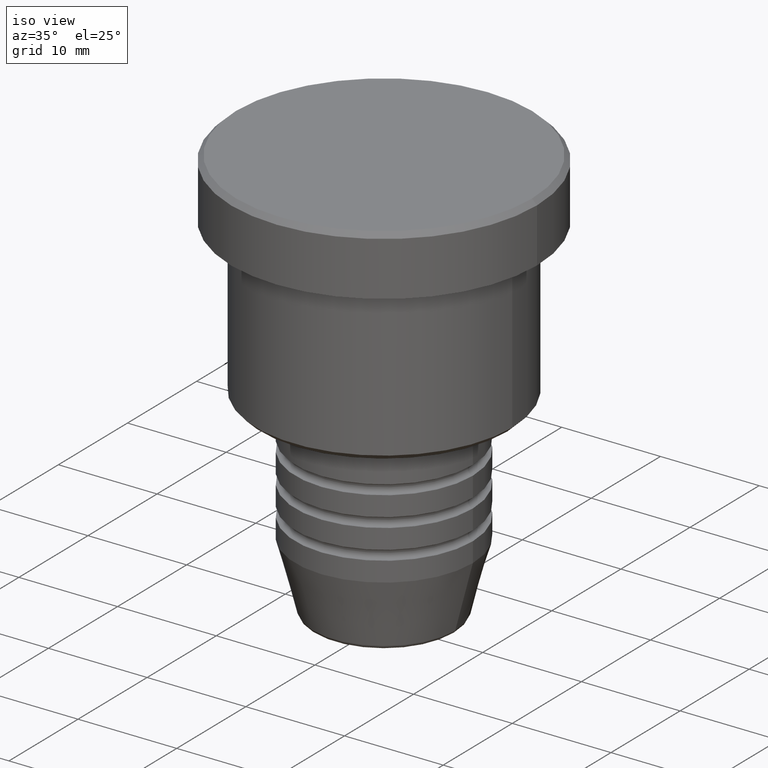
[diagram: clean part render]
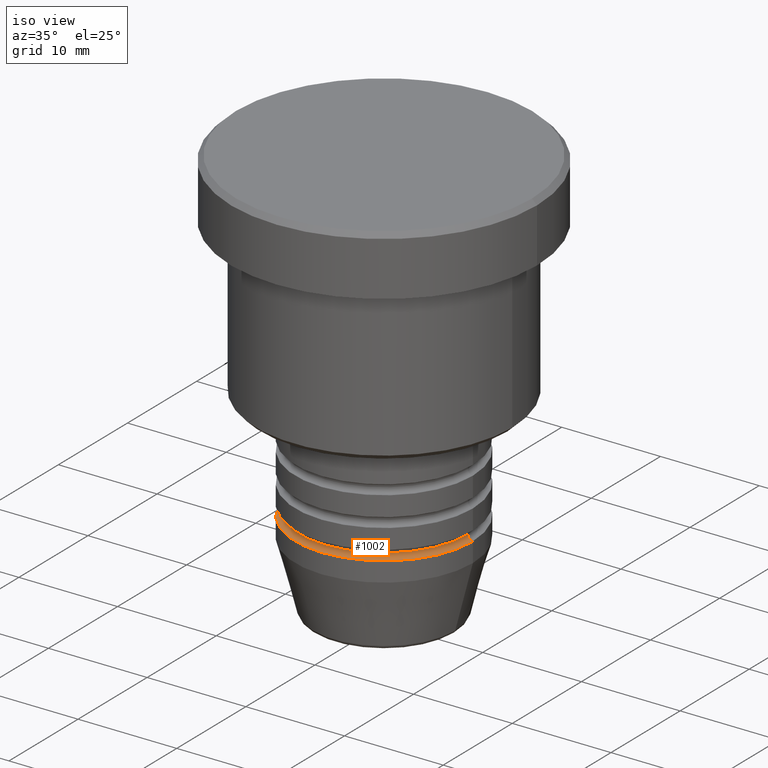
[diagram: same view with one face highlighted and labeled with its STEP entity id]
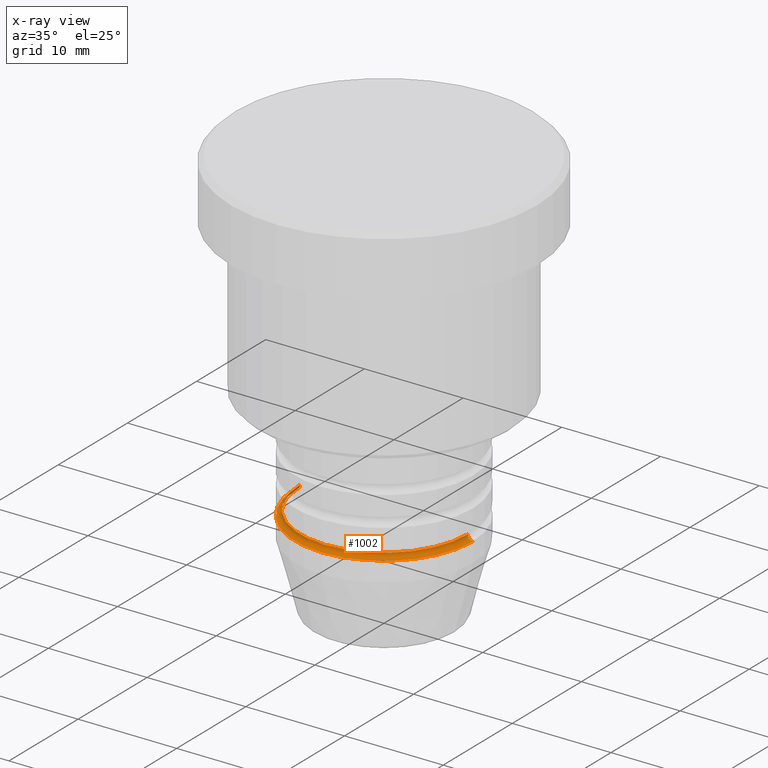
[diagram: x-ray of the same camera — body ghosted, the highlighted face saturated]
A machine part, iso view. The second image highlights one B-rep face of the part: STEP entity #1002.
The next image is the same camera in x-ray: the body ghosted, the highlighted face saturated — about 2% of this face is hidden behind the body in this view.
In plain terms, the highlighted toroidal blend (fillet) surface has major radius 9 mm and minor (blend) radius 0.5 mm.
Its self-contained STEP definition (entity closure, byte-faithful):
#26 = EDGE_CURVE ( 'NONE', #497, #906, #1068, .T. ) ;
#37 = DIRECTION ( 'NONE',  ( 1.000000000000000000, 0.000000000000000000, 0.000000000000000000 ) ) ;
#56 = DIRECTION ( 'NONE',  ( -0.000000000000000000, -0.000000000000000000, 1.000000000000000000 ) ) ;
#146 = ORIENTED_EDGE ( 'NONE', *, *, #26, .T. ) ;
#213 = CARTESIAN_POINT ( 'NONE',  ( -9.000000000000001776, 1.102182119232617911E-15, -32.49999999999998579 ) ) ;
#223 = TOROIDAL_SURFACE ( 'NONE', #415, 9.000000000000001776, 0.5000000000000000000 ) ;
#251 = DIRECTION ( 'NONE',  ( 1.000000000000000000, 0.000000000000000000, 0.000000000000000000 ) ) ;
#253 = VERTEX_POINT ( 'NONE', #985 ) ;
#266 = ORIENTED_EDGE ( 'NONE', *, *, #685, .F. ) ;
#293 = CIRCLE ( 'NONE', #1168, 8.500000000000000000 ) ;
#301 = DIRECTION ( 'NONE',  ( -1.000000000000000000, 1.224646799147353454E-16, 0.000000000000000000 ) ) ;
#305 = EDGE_CURVE ( 'NONE', #509, #253, #706, .T. ) ;
#325 = CARTESIAN_POINT ( 'NONE',  ( 8.500000000000000000, 0.000000000000000000, -32.49999999999998579 ) ) ;
#358 = CIRCLE ( 'NONE', #763, 9.000000000000000000 ) ;
#369 = DIRECTION ( 'NONE',  ( 0.000000000000000000, 0.000000000000000000, -1.000000000000000000 ) ) ;
#415 = AXIS2_PLACEMENT_3D ( 'NONE', #779, #686, #37 ) ;
#450 = CARTESIAN_POINT ( 'NONE',  ( 9.000000000000001776, 0.000000000000000000, -32.49999999999998579 ) ) ;
#497 = VERTEX_POINT ( 'NONE', #1127 ) ;
#509 = VERTEX_POINT ( 'NONE', #325 ) ;
#565 = EDGE_CURVE ( 'NONE', #906, #253, #358, .T. ) ;
#649 = ORIENTED_EDGE ( 'NONE', *, *, #565, .T. ) ;
#673 = CARTESIAN_POINT ( 'NONE',  ( -9.000000000000000000, 1.102182119232617714E-15, -32.99999999999999289 ) ) ;
#685 = EDGE_CURVE ( 'NONE', #497, #509, #293, .T. ) ;
#686 = DIRECTION ( 'NONE',  ( -0.000000000000000000, -0.000000000000000000, 1.000000000000000000 ) ) ;
#706 = CIRCLE ( 'NONE', #745, 0.5000000000000004441 ) ;
#723 = CARTESIAN_POINT ( 'NONE',  ( 0.000000000000000000, 0.000000000000000000, -32.49999999999998579 ) ) ;
#744 = ORIENTED_EDGE ( 'NONE', *, *, #305, .F. ) ;
#745 = AXIS2_PLACEMENT_3D ( 'NONE', #450, #1173, #369 ) ;
#763 = AXIS2_PLACEMENT_3D ( 'NONE', #969, #56, #1042 ) ;
#779 = CARTESIAN_POINT ( 'NONE',  ( 0.000000000000000000, 0.000000000000000000, -32.49999999999998579 ) ) ;
#804 = EDGE_LOOP ( 'NONE', ( #266, #146, #649, #744 ) ) ;
#812 = DIRECTION ( 'NONE',  ( -0.000000000000000000, -0.000000000000000000, 1.000000000000000000 ) ) ;
#906 = VERTEX_POINT ( 'NONE', #673 ) ;
#946 = DIRECTION ( 'NONE',  ( 1.224646799147353207E-16, 1.000000000000000000, 0.000000000000000000 ) ) ;
#969 = CARTESIAN_POINT ( 'NONE',  ( 0.000000000000000000, 0.000000000000000000, -32.99999999999999289 ) ) ;
#985 = CARTESIAN_POINT ( 'NONE',  ( 9.000000000000000000, 0.000000000000000000, -32.99999999999999289 ) ) ;
#1002 = ADVANCED_FACE ( 'NONE', ( #1134 ), #223, .F. ) ;
#1042 = DIRECTION ( 'NONE',  ( 1.000000000000000000, 0.000000000000000000, 0.000000000000000000 ) ) ;
#1068 = CIRCLE ( 'NONE', #1086, 0.5000000000000004441 ) ;
#1086 = AXIS2_PLACEMENT_3D ( 'NONE', #213, #946, #301 ) ;
#1127 = CARTESIAN_POINT ( 'NONE',  ( -8.500000000000000000, 1.071565949253933927E-15, -32.49999999999998579 ) ) ;
#1134 = FACE_OUTER_BOUND ( 'NONE', #804, .T. ) ;
#1168 = AXIS2_PLACEMENT_3D ( 'NONE', #723, #812, #251 ) ;
#1173 = DIRECTION ( 'NONE',  ( 0.000000000000000000, -1.000000000000000000, 0.000000000000000000 ) ) ;